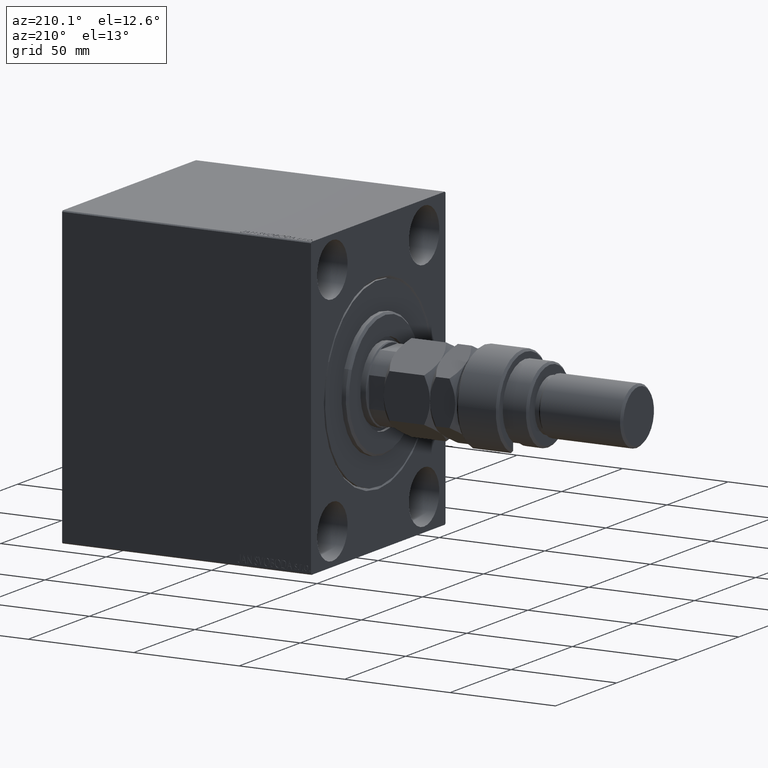
[diagram: clean part render]
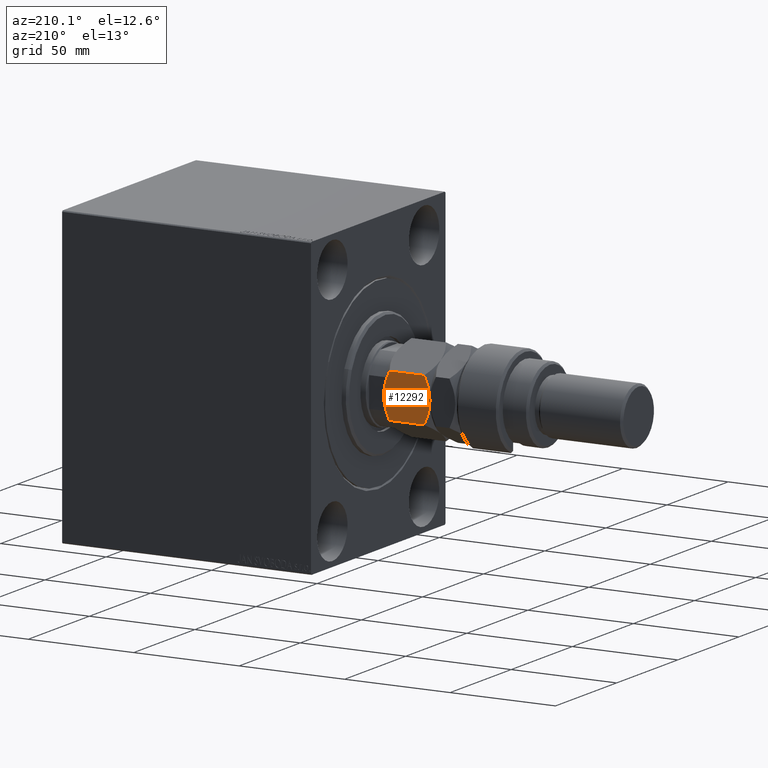
[diagram: same view with one face highlighted and labeled with its STEP entity id]
A machine part, auxiliary view. The second image highlights one B-rep face of the part: STEP entity #12292.
In plain terms, the highlighted planar face has unit normal (0, -1, 0).
Its self-contained STEP definition (entity closure, byte-faithful):
#33 = EDGE_LOOP ( 'NONE', ( #37242, #32164, #10032, #27215, #26133, #17333 ) ) ;
#154 = B_SPLINE_CURVE_WITH_KNOTS ( 'NONE', 3,
 ( #4617, #26303, #14742, #1063, #22083, #15225 ),
 .UNSPECIFIED., .F., .F.,
 ( 4, 2, 4 ),
 ( 0.01077282027732747414, 0.01612137750481873466, 0.02146993473230999344 ),
 .UNSPECIFIED. ) ;
#511 = VECTOR ( 'NONE', #2149, 1000.000000000000000 ) ;
#582 = DIRECTION ( 'NONE',  ( 0.8660254037844388186, 0.4999999999999996114, 0.000000000000000000 ) ) ;
#963 = CARTESIAN_POINT ( 'NONE',  ( -8.605874323383762459, 15.81600583360882162, 21.99999999999999645 ) ) ;
#1063 = CARTESIAN_POINT ( 'NONE',  ( -2.860715810337960185, 19.13297464765287614, 1.272574701504242345 ) ) ;
#2149 = DIRECTION ( 'NONE',  ( -0.000000000000000000, -0.000000000000000000, -1.000000000000000000 ) ) ;
#3807 = VERTEX_POINT ( 'NONE', #33049 ) ;
#4617 = CARTESIAN_POINT ( 'NONE',  ( -8.999999999999991118, 15.58845726811989785, 0.000000000000000000 ) ) ;
#4994 = CARTESIAN_POINT ( 'NONE',  ( -15.14539811114618217, 12.04041001437223279, 1.277383077889873819 ) ) ;
#5250 = EDGE_CURVE ( 'NONE', #20211, #23812, #30935, .T. ) ;
#5989 = CARTESIAN_POINT ( 'NONE',  ( -18.00000000000000000, 10.39230484541327115, 2.784609690826521433 ) ) ;
#7614 = LINE ( 'NONE', #43720, #8312 ) ;
#8312 = VECTOR ( 'NONE', #21305, 1000.000000000000000 ) ;
#8316 = CARTESIAN_POINT ( 'NONE',  ( -10.97671975407794953, 14.44719758599054771, 0.1387225990985785085 ) ) ;
#8546 = CARTESIAN_POINT ( 'NONE',  ( -9.790461530629869458, 15.13208409062670334, 0.01733285647409164854 ) ) ;
#8795 = B_SPLINE_CURVE_WITH_KNOTS ( 'NONE', 3,
 ( #19700, #41432, #34104, #27018, #38104, #31014 ),
 .UNSPECIFIED., .F., .F.,
 ( 4, 2, 4 ),
 ( 0.01077282027732746027, 0.01612137750481872772, 0.02146993473230999691 ),
 .UNSPECIFIED. ) ;
#10032 = ORIENTED_EDGE ( 'NONE', *, *, #39640, .F. ) ;
#11443 = FACE_OUTER_BOUND ( 'NONE', #33, .T. ) ;
#12292 = ADVANCED_FACE ( 'NONE', ( #11443 ), #43310, .F. ) ;
#12532 = CARTESIAN_POINT ( 'NONE',  ( -18.00000000000000000, 10.39230484541327115, 2.784609690826521433 ) ) ;
#13592 = VERTEX_POINT ( 'NONE', #45146 ) ;
#14742 = CARTESIAN_POINT ( 'NONE',  ( -5.895697476400516557, 17.38072716576608912, 0.2763959071215859042 ) ) ;
#14966 = DIRECTION ( 'NONE',  ( 0.4999999999999996114, -0.8660254037844388186, 0.000000000000000000 ) ) ;
#15225 = CARTESIAN_POINT ( 'NONE',  ( -1.065242688631141971E-15, 20.78460969082652454, 2.784609690826513440 ) ) ;
#15819 = CARTESIAN_POINT ( 'NONE',  ( -8.999999999999991118, 15.58845726811989785, 22.00000000000000000 ) ) ;
#17078 = EDGE_CURVE ( 'NONE', #3807, #23812, #154, .T. ) ;
#17333 = ORIENTED_EDGE ( 'NONE', *, *, #17078, .F. ) ;
#18656 = CARTESIAN_POINT ( 'NONE',  ( -2.339913671058857151E-16, 20.78460969082652454, 19.21539030917348256 ) ) ;
#19119 = CARTESIAN_POINT ( 'NONE',  ( -2.854601888853811165, 19.13650452186756468, 20.72261692211012374 ) ) ;
#19379 = CARTESIAN_POINT ( 'NONE',  ( -12.14199022028319419, 13.77442836864822340, 0.3405631022552705334 ) ) ;
#19700 = CARTESIAN_POINT ( 'NONE',  ( -8.999999999999991118, 15.58845726811989785, 22.00000000000000000 ) ) ;
#20211 = VERTEX_POINT ( 'NONE', #26969 ) ;
#21305 = DIRECTION ( 'NONE',  ( -0.000000000000000000, -0.000000000000000000, -1.000000000000000000 ) ) ;
#22083 = CARTESIAN_POINT ( 'NONE',  ( -1.409696000463985355, 19.97072132548310108, 1.970721325483047570 ) ) ;
#22920 = CARTESIAN_POINT ( 'NONE',  ( -10.58425150785354241, 14.67378923359659559, 0.08694689011815655288 ) ) ;
#23812 = VERTEX_POINT ( 'NONE', #27303 ) ;
#23853 = CARTESIAN_POINT ( 'NONE',  ( 0.000000000000000000, 20.78460969082652454, 22.00000000000000000 ) ) ;
#26133 = ORIENTED_EDGE ( 'NONE', *, *, #5250, .T. ) ;
#26303 = CARTESIAN_POINT ( 'NONE',  ( -7.434539168300451806, 16.49227650070744389, 2.835866307407396746E-15 ) ) ;
#26458 = B_SPLINE_CURVE_WITH_KNOTS ( 'NONE', 3,
 ( #12532, #40406, #4994, #44666, #19379, #8316, #22920, #8546, #26930, #29756 ),
 .UNSPECIFIED., .F., .F.,
 ( 4, 2, 2, 2, 4 ),
 ( 2.544307986804616605E-07, 0.005386537354063081207, 0.008079678815695278543, 0.009426249546511375477, 0.01077282027732747414 ),
 .UNSPECIFIED. ) ;
#26686 = VERTEX_POINT ( 'NONE', #5989 ) ;
#26930 = CARTESIAN_POINT ( 'NONE',  ( -9.394125676616230436, 15.36090870263097941, 2.570744994916802318E-15 ) ) ;
#26969 = CARTESIAN_POINT ( 'NONE',  ( -2.339913671058857151E-16, 20.78460969082652454, 19.21539030917348256 ) ) ;
#27018 = CARTESIAN_POINT ( 'NONE',  ( -15.13928418966203004, 12.04393988858690889, 20.72742529849574566 ) ) ;
#27138 = VERTEX_POINT ( 'NONE', #42293 ) ;
#27215 = ORIENTED_EDGE ( 'NONE', *, *, #28208, .F. ) ;
#27303 = CARTESIAN_POINT ( 'NONE',  ( -1.065242688631141971E-15, 20.78460969082652454, 2.784609690826513440 ) ) ;
#28208 = EDGE_CURVE ( 'NONE', #20211, #27138, #33329, .T. ) ;
#29019 = EDGE_CURVE ( 'NONE', #13592, #26686, #7614, .T. ) ;
#29104 = EDGE_CURVE ( 'NONE', #26686, #3807, #26458, .T. ) ;
#29734 = CARTESIAN_POINT ( 'NONE',  ( -8.209538469370123437, 16.04483044561310479, 21.98266714352590157 ) ) ;
#29756 = CARTESIAN_POINT ( 'NONE',  ( -8.999999999999991118, 15.58845726811989785, 0.000000000000000000 ) ) ;
#29977 = CARTESIAN_POINT ( 'NONE',  ( -1.411330396252047148, 19.96977770663490404, 20.03022229336509952 ) ) ;
#30935 = LINE ( 'NONE', #23853, #511 ) ;
#31014 = CARTESIAN_POINT ( 'NONE',  ( -18.00000000000000000, 10.39230484541327293, 19.21539030917347546 ) ) ;
#32164 = ORIENTED_EDGE ( 'NONE', *, *, #29019, .F. ) ;
#32446 = CARTESIAN_POINT ( 'NONE',  ( 0.000000000000000000, 20.78460969082652454, 22.00000000000000000 ) ) ;
#33049 = CARTESIAN_POINT ( 'NONE',  ( -8.999999999999991118, 15.58845726811989785, 0.000000000000000000 ) ) ;
#33062 = CARTESIAN_POINT ( 'NONE',  ( -7.023280245922044251, 16.72971695024925509, 21.86127740090141458 ) ) ;
#33300 = CARTESIAN_POINT ( 'NONE',  ( -7.415748492146450488, 16.50312530264321254, 21.91305310988183663 ) ) ;
#33329 = B_SPLINE_CURVE_WITH_KNOTS ( 'NONE', 3,
 ( #18656, #29977, #19119, #37307, #44406, #33062, #33300, #29734, #963, #15819 ),
 .UNSPECIFIED., .F., .F.,
 ( 4, 2, 2, 2, 4 ),
 ( 2.544307986817554504E-07, 0.005386537354063073400, 0.008079678815695268135, 0.009426249546511363334, 0.01077282027732746027 ),
 .UNSPECIFIED. ) ;
#34104 = CARTESIAN_POINT ( 'NONE',  ( -12.10430252359947545, 13.79618737047371013, 21.72360409287842131 ) ) ;
#37242 = ORIENTED_EDGE ( 'NONE', *, *, #29104, .F. ) ;
#37307 = CARTESIAN_POINT ( 'NONE',  ( -5.097327296964721199, 17.84166640377631552, 21.46291444417098759 ) ) ;
#38104 = CARTESIAN_POINT ( 'NONE',  ( -16.59030399953601176, 11.20619321075669284, 20.02927867451694155 ) ) ;
#38864 = AXIS2_PLACEMENT_3D ( 'NONE', #32446, #14966, #582 ) ;
#39640 = EDGE_CURVE ( 'NONE', #27138, #13592, #8795, .T. ) ;
#40406 = CARTESIAN_POINT ( 'NONE',  ( -16.58866960374794530, 11.20713682960488811, 1.969777706634902259 ) ) ;
#41432 = CARTESIAN_POINT ( 'NONE',  ( -10.56546083169953221, 14.68463803553235714, 21.99999999999998934 ) ) ;
#42293 = CARTESIAN_POINT ( 'NONE',  ( -8.999999999999991118, 15.58845726811989785, 22.00000000000000000 ) ) ;
#43310 = PLANE ( 'NONE',  #38864 ) ;
#43720 = CARTESIAN_POINT ( 'NONE',  ( -18.00000000000000000, 10.39230484541327293, 22.00000000000000000 ) ) ;
#44406 = CARTESIAN_POINT ( 'NONE',  ( -5.858009779716798704, 17.40248616759157940, 21.65943689774472247 ) ) ;
#44666 = CARTESIAN_POINT ( 'NONE',  ( -12.90267270303526814, 13.33524813246347840, 0.5370855558290131837 ) ) ;
#45146 = CARTESIAN_POINT ( 'NONE',  ( -18.00000000000000000, 10.39230484541327293, 19.21539030917347546 ) ) ;